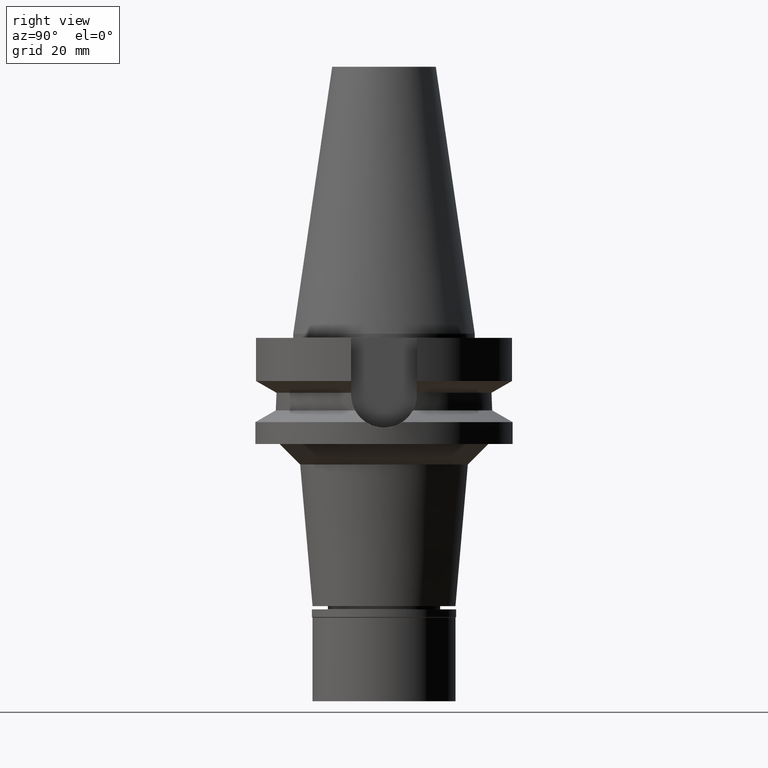
[diagram: clean part render]
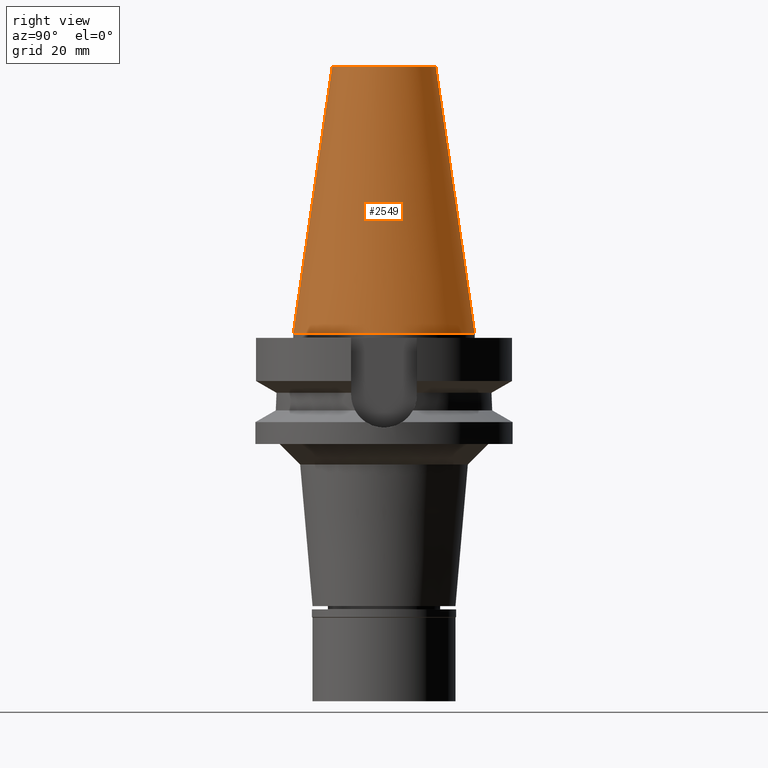
[diagram: same view with one face highlighted and labeled with its STEP entity id]
A machine part, right view. The second image highlights one B-rep face of the part: STEP entity #2549.
In plain terms, the highlighted conical surface has half-angle 8.297 deg.
Its self-contained STEP definition (entity closure, byte-faithful):
#56 = CARTESIAN_POINT ( 'NONE',  ( 0.0000000000000000000, 1.625106302469000024E-14, 2.842170943039999687E-14 ) ) ;
#57 = ORIENTED_EDGE ( 'NONE', *, *, #614, .T. ) ;
#75 = CARTESIAN_POINT ( 'NONE',  ( 0.0000000000000000000, 1.625106302469000024E-14, 65.40000000000000568 ) ) ;
#81 = DIRECTION ( 'NONE',  ( 0.0000000000000000000, 0.1443043893539925626, -0.9895333461855498891 ) ) ;
#91 = AXIS2_PLACEMENT_3D ( 'NONE', #56, #1301, #1720 ) ;
#614 = EDGE_CURVE ( 'NONE', #1571, #897, #2120, .T. ) ;
#820 = DIRECTION ( 'NONE',  ( 0.0000000000000000000, -1.000000000000000000, 0.0000000000000000000 ) ) ;
#836 = DIRECTION ( 'NONE',  ( 0.0000000000000000000, -0.1443043893539925626, -0.9895333461855498891 ) ) ;
#897 = VERTEX_POINT ( 'NONE', #2136 ) ;
#1203 = CONICAL_SURFACE ( 'NONE', #3142, 17.45633449714999941, 0.1448099680379422438 ) ;
#1242 = CARTESIAN_POINT ( 'NONE',  ( 0.0000000000000000000, 12.68766899429999917, 65.40000000000000568 ) ) ;
#1286 = DIRECTION ( 'NONE',  ( 0.0000000000000000000, 0.0000000000000000000, -1.000000000000000000 ) ) ;
#1301 = DIRECTION ( 'NONE',  ( 0.0000000000000000000, 0.0000000000000000000, -1.000000000000000000 ) ) ;
#1309 = CARTESIAN_POINT ( 'NONE',  ( 0.0000000000000000000, 12.68766899429999917, 65.40000000000000568 ) ) ;
#1477 = CARTESIAN_POINT ( 'NONE',  ( 0.0000000000000000000, -22.22500000000000142, 7.815970093360999808E-14 ) ) ;
#1481 = DIRECTION ( 'NONE',  ( 0.0000000000000000000, 1.000000000000000000, 0.0000000000000000000 ) ) ;
#1571 = VERTEX_POINT ( 'NONE', #1242 ) ;
#1590 = EDGE_LOOP ( 'NONE', ( #57, #3039, #2746, #2678 ) ) ;
#1613 = VECTOR ( 'NONE', #81, 1000.000000000000114 ) ;
#1720 = DIRECTION ( 'NONE',  ( 0.0000000000000000000, 1.000000000000000000, 0.0000000000000000000 ) ) ;
#1814 = CARTESIAN_POINT ( 'NONE',  ( 0.0000000000000000000, 22.22500000000000142, 7.815970093360999808E-14 ) ) ;
#1863 = LINE ( 'NONE', #2538, #2427 ) ;
#1931 = VERTEX_POINT ( 'NONE', #1477 ) ;
#2037 = DIRECTION ( 'NONE',  ( 0.0000000000000000000, 0.0000000000000000000, -1.000000000000000000 ) ) ;
#2120 = CIRCLE ( 'NONE', #3090, 12.68766899429999917 ) ;
#2136 = CARTESIAN_POINT ( 'NONE',  ( 0.0000000000000000000, -12.68766899429999917, 65.40000000000000568 ) ) ;
#2169 = EDGE_CURVE ( 'NONE', #1571, #2748, #2731, .T. ) ;
#2427 = VECTOR ( 'NONE', #836, 1000.000000000000114 ) ;
#2538 = CARTESIAN_POINT ( 'NONE',  ( 0.0000000000000000000, -12.68766899429999917, 65.40000000000000568 ) ) ;
#2549 = ADVANCED_FACE ( 'NONE', ( #2982 ), #1203, .T. ) ;
#2678 = ORIENTED_EDGE ( 'NONE', *, *, #2169, .F. ) ;
#2722 = EDGE_CURVE ( 'NONE', #897, #1931, #1863, .T. ) ;
#2731 = LINE ( 'NONE', #1309, #1613 ) ;
#2746 = ORIENTED_EDGE ( 'NONE', *, *, #3150, .F. ) ;
#2748 = VERTEX_POINT ( 'NONE', #1814 ) ;
#2796 = CIRCLE ( 'NONE', #91, 22.22500000000000142 ) ;
#2982 = FACE_OUTER_BOUND ( 'NONE', #1590, .T. ) ;
#3017 = CARTESIAN_POINT ( 'NONE',  ( 0.0000000000000000000, 1.625106302469000024E-14, 32.70000000000000284 ) ) ;
#3039 = ORIENTED_EDGE ( 'NONE', *, *, #2722, .T. ) ;
#3090 = AXIS2_PLACEMENT_3D ( 'NONE', #75, #2037, #1481 ) ;
#3142 = AXIS2_PLACEMENT_3D ( 'NONE', #3017, #1286, #820 ) ;
#3150 = EDGE_CURVE ( 'NONE', #2748, #1931, #2796, .T. ) ;